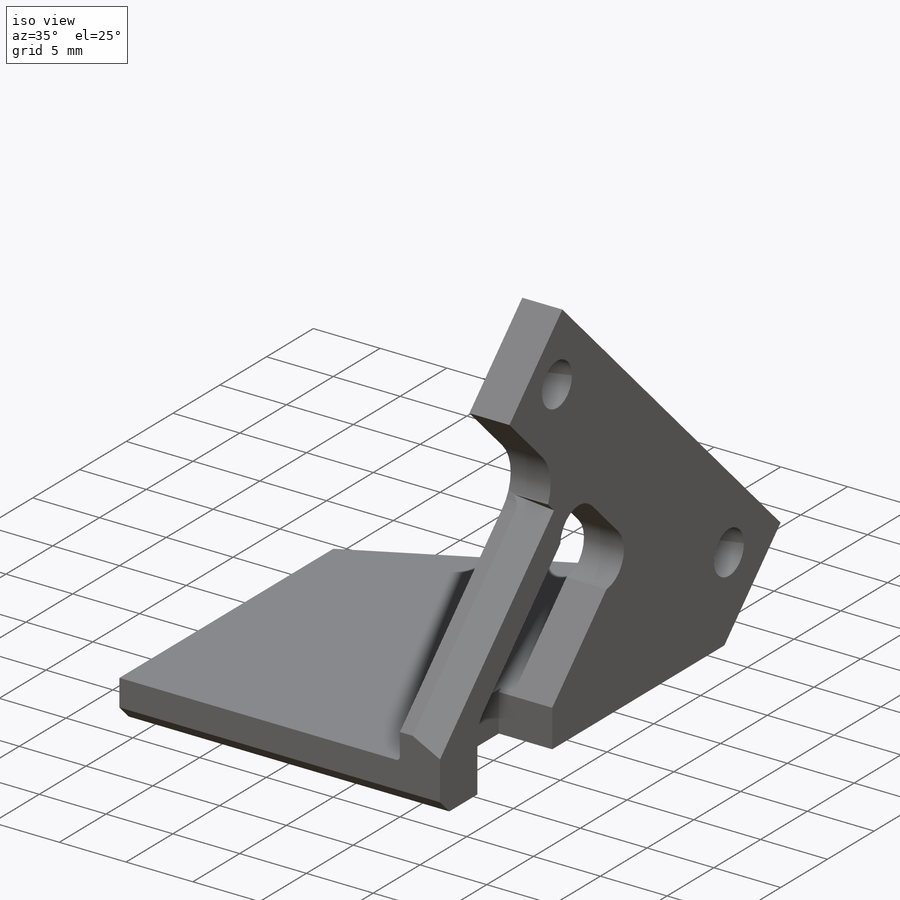
[diagram: iso view]
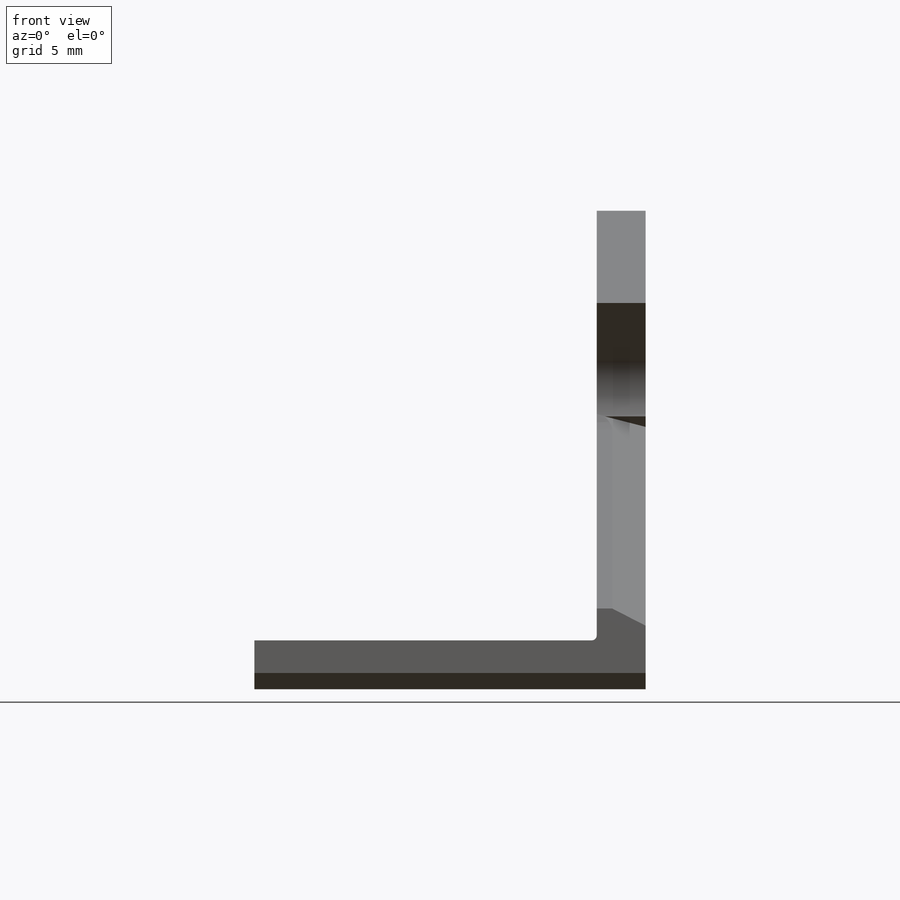
[diagram: front view]
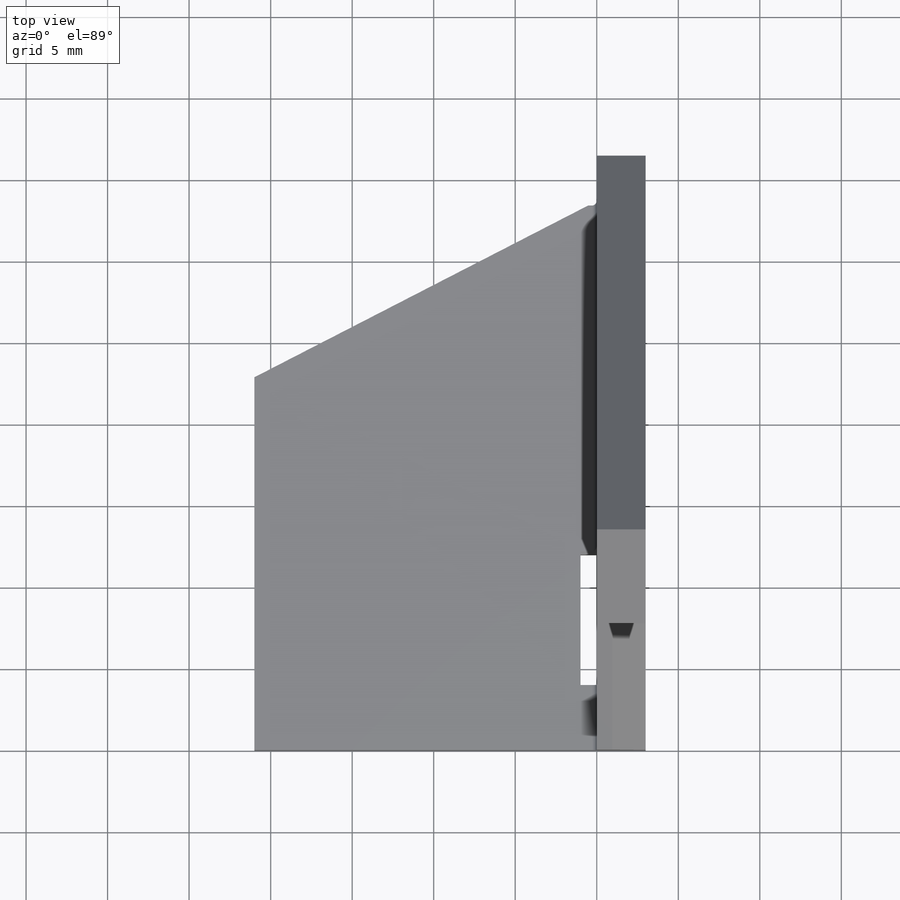
[diagram: top view]
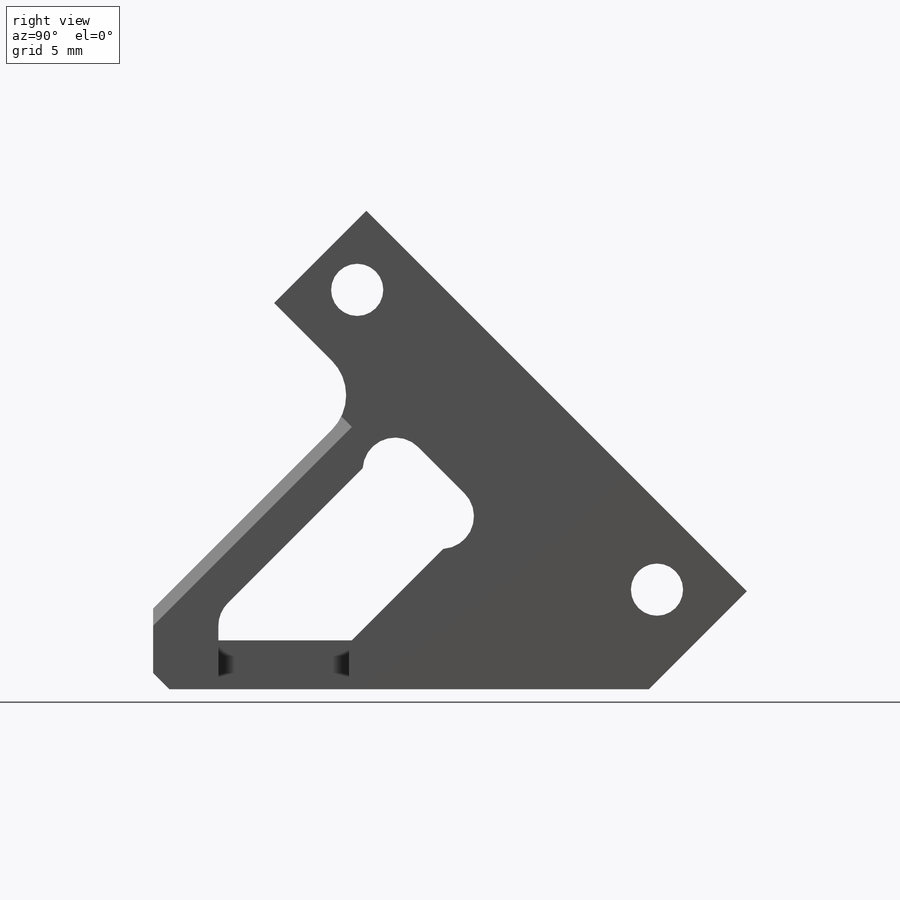
[diagram: right view]
SOLIDWORKS PART (.sldprt)
format: sldprt  version: not decoded by parser v0  size: 326,656 bytes
history: native  units: mm
features: sketch x7, cut_extrude x4, plane x3, material x1, extrude x1, chamfer x1, hole x1, fillet x1 (+14 scaffold rows collapsed)
feature tree (33):
  scaffold x14  (default folders/planes/origin — collapsed)
  material  "6063-T1"
  plane  "Спереди"
  plane  "Сверху"
  plane  "Справа"
  sketch  "Эскиз1"  dims[D1=3.0mm D2=3.0mm D3=21.0mm D4=35.0mm]
  extrude  "Бобышка-Вытянуть1"  Depth=40mm
  sketch  "Эскиз2"  dims[c1.D1=3.0mm c1.D2=3.5mm c1.D3=8.0mm c1.D4=33.0mm c1.D5=30.0mm c1.D6=3.5mm c1.D7=8.0mm c1.D8=8.0mm c2.D8=45.0deg]
  cut_extrude  "Вырез-Вытянуть1"  [1 undecoded]
  sketch  "Эскиз3"  dims[c1.D1=~39.410825mm c2.D1=70.0deg c2.D2=7.0mm]
  cut_extrude  "Вырез-Вытянуть2"  Depth=0mm Material_Int=0mm Material_Ext=0mm Surface=0mm
  sketch  "Эскиз4"  dims[D1=2.0mm D2=3.0mm D3=7.0mm D4=8.0mm D5=8.0mm D6=4.0mm D7=8.0mm]
  cut_extrude  "Вырез-Вытянуть3"  Depth=4mm
  sketch  "Эскиз5"  dims[c1.D1=~2.302199mm c2.D1=70.0deg c2.D2=0.7mm]
  cut_extrude  "Вырез-Вытянуть6"  Depth=2mm
  chamfer  "Фаска1"  Distance=1mm Angle=45deg
  hole  "Отверстие с зазором M31"  [1 undecoded]
  sketch  "Эскиз7"
  sketch  "Эскиз6"  dims[hole-wizard template sketch: 54 standard entries collapsed; hole parameters kept: c17.Диаметр сквозного отверстия=3.2mm c17.Глубина сквозного отверстия=3.0mm c17.Диаметр задней зенковки=3.45mm c17.D4=~2.963249mm c17.Угол задней зенковки=90.0deg c17.Surface=0.0mm c17.Material_Int=0.0mm c17.Material_Ext=0.0mm c18.Surface=0.0mm c18.Material_Int=0.0mm c18.Material_Ext=0.0mm c19.Surface=0.0mm c19.Material_Int=0.0mm c19.Material_Ext=0.0mm c20.Surface=0.0mm c20.Material_Int=0.0mm c20.Material_Ext=0.0mm c21.Surface=0.0mm c21.Material_Int=0.0mm c21.Material_Ext=0.0mm c22.Surface=0.0mm c22.Material_Int=0.0mm c22.Material_Ext=0.0mm c23.Surface=0.0mm c23.Material_Int=0.0mm c23.Material_Ext=0.0mm c24.Surface=0.0mm c24.Material_Int=0.0mm c24.Material_Ext=0.0mm c25.Surface=0.0mm c25.Material_Int=0.0mm c25.Material_Ext=0.0mm c26.Surface=0.0mm c26.Material_Int=0.0mm c26.Material_Ext=0.0mm c27.Surface=0.0mm c27.Material_Int=0.0mm c27.Material_Ext=0.0mm c28.Surface=0.0mm c28.Material_Int=0.0mm c28.Material_Ext=0.0mm c29.Surface=0.0mm c29.Material_Int=0.0mm c29.Material_Ext=0.0mm c30.Surface=0.0mm c30.Material_Int=0.0mm c30.Material_Ext=0.0mm c31.Surface=0.0mm c31.Material_Int=0.0mm c31.Material_Ext=0.0mm]
  fillet  "Скругление1"  Radius=0.3mm Surface=0mm Material_Int=0mm Material_Ext=0mm
decode coverage: 12 of 15 modeling features carry decoded parameters
note: ~ marks probable driven/reference dimensions
note: 2 parameter values undecoded
note: suppression state not decoded; provenance and decode notes live in map.json
